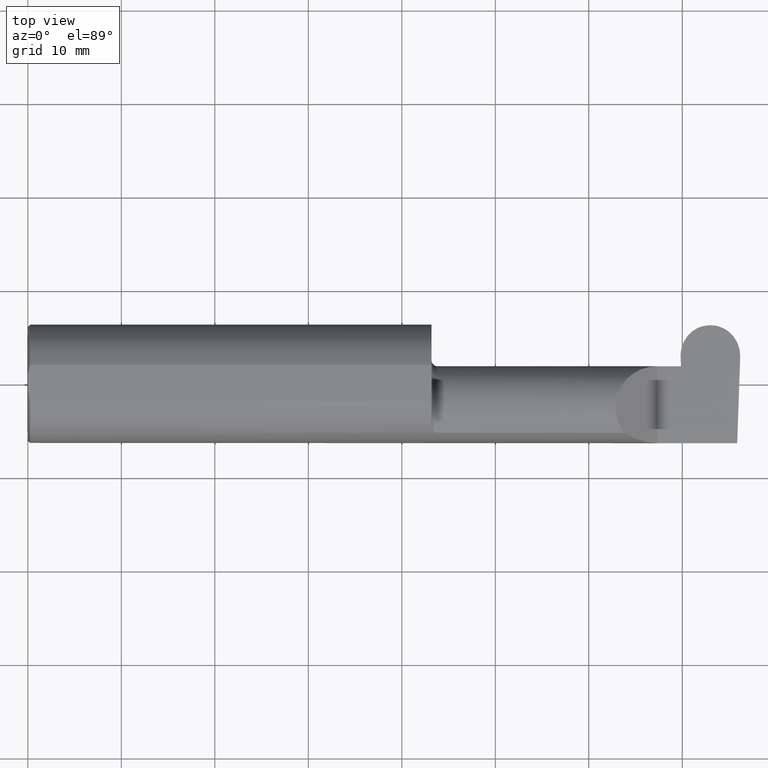
[diagram: clean part render]
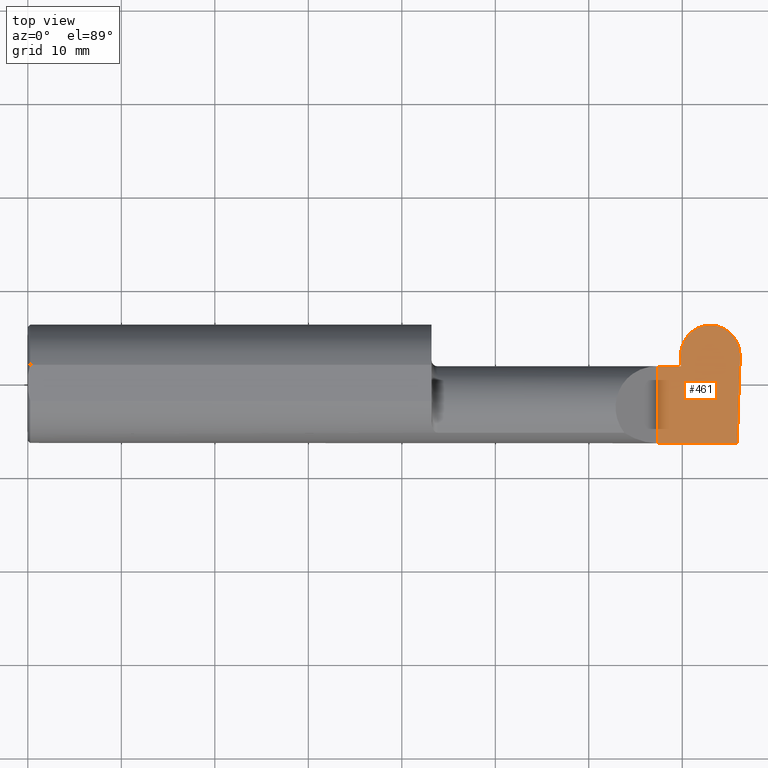
[diagram: same view with one face highlighted and labeled with its STEP entity id]
A machine part, top view. The second image highlights one B-rep face of the part: STEP entity #461.
In plain terms, the highlighted planar face has unit normal (-0, 0, -1).
Its self-contained STEP definition (entity closure, byte-faithful):
#4 = ORIENTED_EDGE ( 'NONE', *, *, #396, .F. ) ;
#19 = VERTEX_POINT ( 'NONE', #103 ) ;
#25 = LINE ( 'NONE', #256, #294 ) ;
#30 = VERTEX_POINT ( 'NONE', #335 ) ;
#41 = VERTEX_POINT ( 'NONE', #503 ) ;
#47 = CARTESIAN_POINT ( 'NONE',  ( 2.999793206199442785, 0.1134305025558126345, 0.000000000000000000 ) ) ;
#55 = ORIENTED_EDGE ( 'NONE', *, *, #137, .F. ) ;
#63 = VECTOR ( 'NONE', #607, 39.37007874015748143 ) ;
#86 = CARTESIAN_POINT ( 'NONE',  ( 2.871989500000000195, 0.2471499999999999808, 0.000000000000000000 ) ) ;
#103 = CARTESIAN_POINT ( 'NONE',  ( 2.871989500000000195, 0.2471499999999999808, 0.000000000000000000 ) ) ;
#121 = CARTESIAN_POINT ( 'NONE',  ( 2.950455787437228139, 0.2471500000000003971, -7.856938782845208821E-19 ) ) ;
#127 = CARTESIAN_POINT ( 'NONE',  ( 2.875201260087795863, 0.2471499999999999808, 0.000000000000000000 ) ) ;
#130 = CARTESIAN_POINT ( 'NONE',  ( 2.748789500000000441, 0.1943187064415508314, 3.216169852589703280E-17 ) ) ;
#136 = CARTESIAN_POINT ( 'NONE',  ( -0.002039370078740339320, 0.2471499999999999808, 0.000000000000000000 ) ) ;
#137 = EDGE_CURVE ( 'NONE', #745, #559, #229, .T. ) ;
#138 = ORIENTED_EDGE ( 'NONE', *, *, #239, .T. ) ;
#140 = CARTESIAN_POINT ( 'NONE',  ( 2.748789500000000441, 0.1196039745734777532, 3.076441347372056086E-17 ) ) ;
#143 = CARTESIAN_POINT ( 'NONE',  ( 2.750367999175829414, 0.07414999999999984104, 0.000000000000000000 ) ) ;
#146 = EDGE_CURVE ( 'NONE', #559, #423, #163, .T. ) ;
#151 = DIRECTION ( 'NONE',  ( -1.000000000000000000, 0.000000000000000000, 1.224646799147351975E-16 ) ) ;
#163 = LINE ( 'NONE', #342, #273 ) ;
#167 = EDGE_CURVE ( 'NONE', #212, #30, #240, .T. ) ;
#172 = CARTESIAN_POINT ( 'NONE',  ( 1.700000000000000178, 0.07414999999999995206, 1.592040838891556877E-16 ) ) ;
#180 = DIRECTION ( 'NONE',  ( -0.03489949670249543195, -0.9993908270190959842, 0.000000000000000000 ) ) ;
#196 = VECTOR ( 'NONE', #487, 39.37007874015748143 ) ;
#201 = EDGE_CURVE ( 'NONE', #699, #41, #476, .T. ) ;
#208 = DIRECTION ( 'NONE',  ( -1.224646799147351975E-16, 0.000000000000000000, -1.000000000000000000 ) ) ;
#212 = VERTEX_POINT ( 'NONE', #580 ) ;
#227 = ORIENTED_EDGE ( 'NONE', *, *, #305, .T. ) ;
#229 = LINE ( 'NONE', #515, #609 ) ;
#232 = CARTESIAN_POINT ( 'NONE',  ( 2.748866015324560319, 0.1171611899918090366, 0.000000000000000000 ) ) ;
#236 = VECTOR ( 'NONE', #344, 39.37007874015748143 ) ;
#239 = EDGE_CURVE ( 'NONE', #745, #653, #425, .T. ) ;
#240 = LINE ( 'NONE', #172, #236 ) ;
#242 =( BOUNDED_CURVE ( )  B_SPLINE_CURVE ( 3, ( #86, #646, #130, #140 ),
 .UNSPECIFIED., .F., .F. ) 
 B_SPLINE_CURVE_WITH_KNOTS ( ( 4, 4 ),
 ( -8.881784197001252323E-16, 1.570796326794896780 ),
 .UNSPECIFIED. ) 
 CURVE ( )  GEOMETRIC_REPRESENTATION_ITEM ( )  RATIONAL_B_SPLINE_CURVE ( ( 1.000000000000000000, 0.8047378541243646044, 0.8047378541243646044, 1.000000000000000000 ) ) 
 REPRESENTATION_ITEM ( '' )  );
#253 = LINE ( 'NONE', #136, #196 ) ;
#256 = CARTESIAN_POINT ( 'NONE',  ( 2.748789500000000441, -0.2500000000000000555, 3.076441347372055469E-17 ) ) ;
#259 = AXIS2_PLACEMENT_3D ( 'NONE', #727, #208, #151 ) ;
#273 = VECTOR ( 'NONE', #463, 39.37007874015748143 ) ;
#293 = ORIENTED_EDGE ( 'NONE', *, *, #361, .F. ) ;
#294 = VECTOR ( 'NONE', #490, 39.37007874015748143 ) ;
#305 = EDGE_CURVE ( 'NONE', #19, #516, #242, .T. ) ;
#333 = LINE ( 'NONE', #143, #492 ) ;
#335 = CARTESIAN_POINT ( 'NONE',  ( 2.739326706053758276, 0.07414999999999984104, 0.000000000000000000 ) ) ;
#342 = CARTESIAN_POINT ( 'NONE',  ( 4.499279347985562423E-32, -0.2498499999999999610, 3.673940397442054938E-16 ) ) ;
#344 = DIRECTION ( 'NONE',  ( 1.000000000000000000, 6.511907283740594647E-17, 0.000000000000000000 ) ) ;
#348 = EDGE_CURVE ( 'NONE', #19, #653, #253, .T. ) ;
#361 = EDGE_CURVE ( 'NONE', #41, #516, #25, .T. ) ;
#368 = VECTOR ( 'NONE', #413, 39.37007874015748143 ) ;
#377 = DIRECTION ( 'NONE',  ( 1.000000000000000000, -0.000000000000000000, -0.000000000000000000 ) ) ;
#381 = LINE ( 'NONE', #611, #63 ) ;
#396 = EDGE_CURVE ( 'NONE', #30, #699, #333, .T. ) ;
#405 = EDGE_CURVE ( 'NONE', #423, #212, #381, .T. ) ;
#413 = DIRECTION ( 'NONE',  ( -0.03489949670249486990, 0.9993908270190959842, -0.000000000000000000 ) ) ;
#416 = CARTESIAN_POINT ( 'NONE',  ( 2.999793206199442785, 0.1134305025558126345, 0.000000000000000000 ) ) ;
#423 = VERTEX_POINT ( 'NONE', #510 ) ;
#425 =( BOUNDED_CURVE ( )  B_SPLINE_CURVE ( 3, ( #416, #637, #121, #127 ),
 .UNSPECIFIED., .F., .T. ) 
 B_SPLINE_CURVE_WITH_KNOTS ( ( 4, 4 ),
 ( 1.637964922114649058, 3.237953570749844356 ),
 .UNSPECIFIED. ) 
 CURVE ( )  GEOMETRIC_REPRESENTATION_ITEM ( )  RATIONAL_B_SPLINE_CURVE ( ( 1.000000000000000000, 0.7978071872141900833, 0.7978071872141900833, 1.000000000000000000 ) ) 
 REPRESENTATION_ITEM ( '' )  );
#461 = ADVANCED_FACE ( 'NONE', ( #558 ), #737, .F. ) ;
#463 = DIRECTION ( 'NONE',  ( -1.000000000000000000, -0.000000000000000000, -0.000000000000000000 ) ) ;
#476 = LINE ( 'NONE', #232, #368 ) ;
#487 = DIRECTION ( 'NONE',  ( 1.000000000000000000, -0.000000000000000000, -0.000000000000000000 ) ) ;
#490 = DIRECTION ( 'NONE',  ( -6.511907283740594647E-17, 1.000000000000000000, 7.974786411377245624E-33 ) ) ;
#492 = VECTOR ( 'NONE', #377, 39.37007874015748143 ) ;
#497 = ORIENTED_EDGE ( 'NONE', *, *, #146, .F. ) ;
#503 = CARTESIAN_POINT ( 'NONE',  ( 2.748789500000000441, 0.1193523022059226057, 0.000000000000000000 ) ) ;
#510 = CARTESIAN_POINT ( 'NONE',  ( 2.650000000000000355, -0.2498499999999999610, 4.286263797015729199E-17 ) ) ;
#515 = CARTESIAN_POINT ( 'NONE',  ( 2.999923484675441010, 0.1171611899918090643, 0.000000000000000000 ) ) ;
#516 = VERTEX_POINT ( 'NONE', #549 ) ;
#549 = CARTESIAN_POINT ( 'NONE',  ( 2.748789500000000441, 0.1196039745734777532, 3.076441347372056086E-17 ) ) ;
#558 = FACE_OUTER_BOUND ( 'NONE', #643, .T. ) ;
#559 = VERTEX_POINT ( 'NONE', #592 ) ;
#580 = CARTESIAN_POINT ( 'NONE',  ( 2.650000000000000355, 0.07415000000000000757, 1.592040838891556877E-16 ) ) ;
#591 = ORIENTED_EDGE ( 'NONE', *, *, #405, .F. ) ;
#592 = CARTESIAN_POINT ( 'NONE',  ( 2.987107171508847081, -0.2498499999999999888, 0.000000000000000000 ) ) ;
#594 = ORIENTED_EDGE ( 'NONE', *, *, #348, .F. ) ;
#607 = DIRECTION ( 'NONE',  ( -0.000000000000000000, 1.000000000000000000, -0.000000000000000000 ) ) ;
#609 = VECTOR ( 'NONE', #180, 39.37007874015748143 ) ;
#610 = CARTESIAN_POINT ( 'NONE',  ( 2.875201260087795863, 0.2471499999999999808, 0.000000000000000000 ) ) ;
#611 = CARTESIAN_POINT ( 'NONE',  ( 2.650000000000000355, -0.2500000000000000555, 4.286263797015729199E-17 ) ) ;
#613 = CARTESIAN_POINT ( 'NONE',  ( 2.750367999175829414, 0.07414999999999984104, 0.000000000000000000 ) ) ;
#637 = CARTESIAN_POINT ( 'NONE',  ( 3.002511784637379222, 0.1912804032740405558, -7.160714913043396685E-18 ) ) ;
#643 = EDGE_LOOP ( 'NONE', ( #594, #227, #293, #692, #4, #715, #591, #497, #55, #138 ) ) ;
#646 = CARTESIAN_POINT ( 'NONE',  ( 2.799820610884365735, 0.2471499999999999808, 2.591218986574986251E-17 ) ) ;
#653 = VERTEX_POINT ( 'NONE', #610 ) ;
#692 = ORIENTED_EDGE ( 'NONE', *, *, #201, .F. ) ;
#699 = VERTEX_POINT ( 'NONE', #613 ) ;
#715 = ORIENTED_EDGE ( 'NONE', *, *, #167, .F. ) ;
#727 = CARTESIAN_POINT ( 'NONE',  ( 3.000000000000000444, -0.2500000000000000555, 0.000000000000000000 ) ) ;
#737 = PLANE ( 'NONE',  #259 ) ;
#745 = VERTEX_POINT ( 'NONE', #47 ) ;